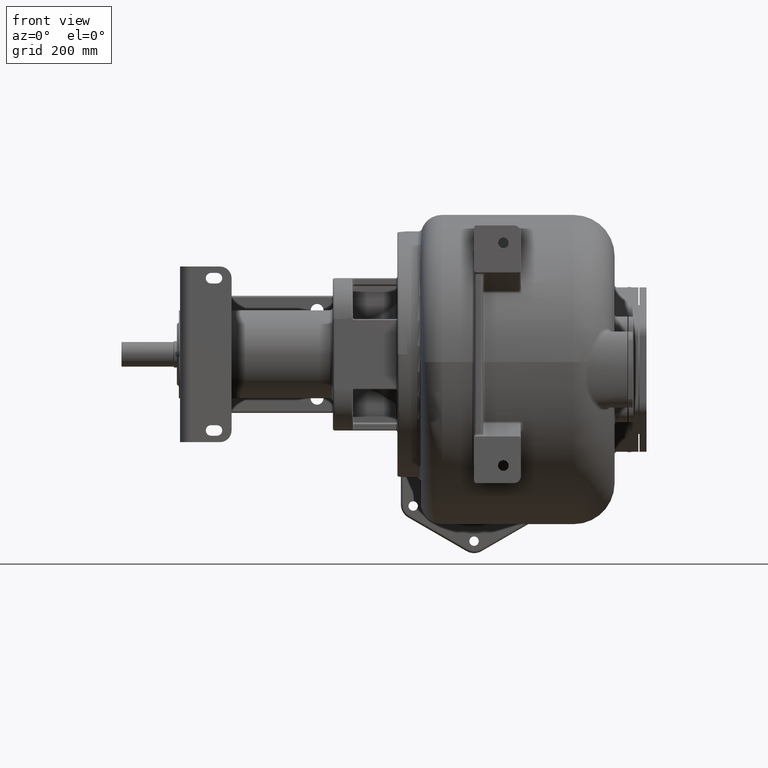
[diagram: clean part render]
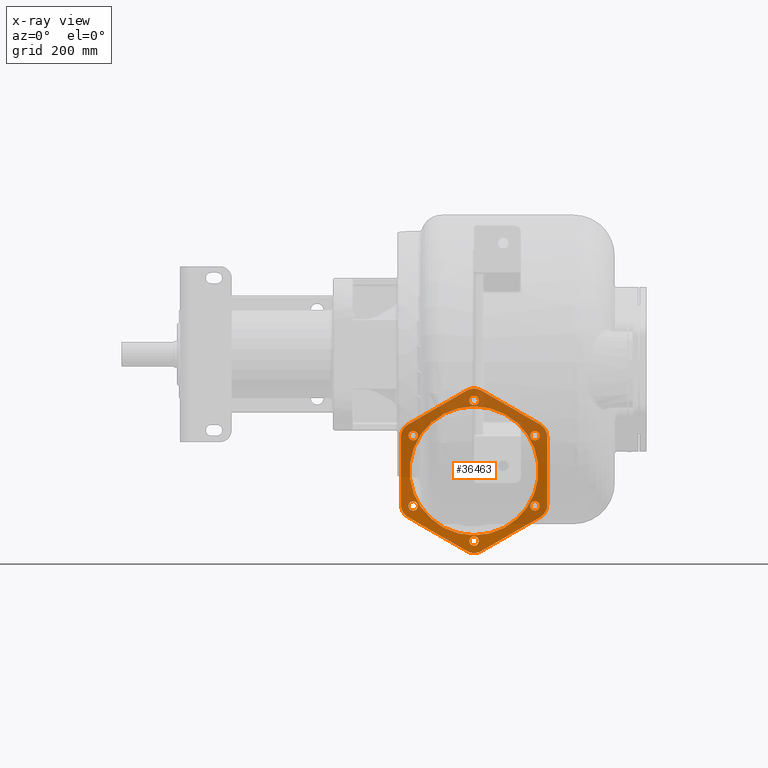
[diagram: x-ray — body ghosted, one internal face saturated and labeled with its STEP entity id]
A machine part, front view, then the same camera in x-ray: the body is ghosted and one INTERNAL B-rep face — a face not visible from any outside direction — is saturated and labeled: STEP entity #36463.
In plain terms, the highlighted planar face has unit normal (0, 1, 0).
Its self-contained STEP definition (entity closure, byte-faithful):
#11440=CARTESIAN_POINT('',(5.E1,6.36E2,-1.412649730810E2));
#11441=DIRECTION('',(0.E0,1.E0,0.E0));
#11442=DIRECTION('',(5.E-1,0.E0,8.660254037844E-1));
#11443=AXIS2_PLACEMENT_3D('',#11440,#11441,#11442);
#11445=DIRECTION('',(-8.660254037844E-1,0.E0,5.E-1));
#11446=VECTOR('',#11445,1.154700538379E2);
#11447=CARTESIAN_POINT('',(6.25E1,6.36E2,-1.196143379864E2));
#11448=LINE('',#11447,#11446);
#11449=CARTESIAN_POINT('',(-5.E1,6.36E2,-8.352994616207E1));
#11450=DIRECTION('',(0.E0,1.E0,0.E0));
#11451=DIRECTION('',(-5.E-1,0.E0,8.660254037844E-1));
#11452=AXIS2_PLACEMENT_3D('',#11449,#11450,#11451);
#11454=DIRECTION('',(-8.660254037844E-1,0.E0,-5.E-1));
#11455=VECTOR('',#11454,1.154700538379E2);
#11456=CARTESIAN_POINT('',(-6.25E1,6.36E2,-6.187931106746E1));
#11457=LINE('',#11456,#11455);
#11458=CARTESIAN_POINT('',(-1.5E2,6.36E2,-1.412649730810E2));
#11459=DIRECTION('',(0.E0,1.E0,0.E0));
#11460=DIRECTION('',(-1.E0,0.E0,0.E0));
#11461=AXIS2_PLACEMENT_3D('',#11458,#11459,#11460);
#11463=DIRECTION('',(0.E0,0.E0,-1.E0));
#11464=VECTOR('',#11463,1.154700538379E2);
#11465=CARTESIAN_POINT('',(-1.75E2,6.36E2,-1.412649730810E2));
#11466=LINE('',#11465,#11464);
#11467=CARTESIAN_POINT('',(-1.5E2,6.36E2,-2.567350269190E2));
#11468=DIRECTION('',(0.E0,1.E0,0.E0));
#11469=DIRECTION('',(-5.E-1,0.E0,-8.660254037844E-1));
#11470=AXIS2_PLACEMENT_3D('',#11467,#11468,#11469);
#11472=DIRECTION('',(8.660254037844E-1,0.E0,-5.E-1));
#11473=VECTOR('',#11472,1.154700538379E2);
#11474=CARTESIAN_POINT('',(-1.625E2,6.36E2,-2.783856620136E2));
#11475=LINE('',#11474,#11473);
#11476=CARTESIAN_POINT('',(-5.E1,6.36E2,-3.144700538379E2));
#11477=DIRECTION('',(0.E0,1.E0,0.E0));
#11478=DIRECTION('',(5.E-1,0.E0,-8.660254037844E-1));
#11479=AXIS2_PLACEMENT_3D('',#11476,#11477,#11478);
#11481=DIRECTION('',(8.660254037844E-1,0.E0,5.E-1));
#11482=VECTOR('',#11481,1.154700538379E2);
#11483=CARTESIAN_POINT('',(-3.75E1,6.36E2,-3.361206889325E2));
#11484=LINE('',#11483,#11482);
#11485=CARTESIAN_POINT('',(5.E1,6.36E2,-2.567350269190E2));
#11486=DIRECTION('',(0.E0,1.E0,0.E0));
#11487=DIRECTION('',(1.E0,0.E0,0.E0));
#11488=AXIS2_PLACEMENT_3D('',#11485,#11486,#11487);
#11490=DIRECTION('',(0.E0,0.E0,1.E0));
#11491=VECTOR('',#11490,1.154700538379E2);
#11492=CARTESIAN_POINT('',(7.5E1,6.36E2,-2.567350269190E2));
#11493=LINE('',#11492,#11491);
#11494=CARTESIAN_POINT('',(-5.E1,6.36E2,-7.9E1));
#11495=DIRECTION('',(0.E0,1.E0,0.E0));
#11496=DIRECTION('',(0.E0,0.E0,-1.E0));
#11497=AXIS2_PLACEMENT_3D('',#11494,#11495,#11496);
#11499=CARTESIAN_POINT('',(-5.E1,6.36E2,-7.9E1));
#11500=DIRECTION('',(0.E0,1.E0,0.E0));
#11501=DIRECTION('',(0.E0,0.E0,1.E0));
#11502=AXIS2_PLACEMENT_3D('',#11499,#11500,#11501);
#11504=CARTESIAN_POINT('',(-5.E1,6.36E2,-3.19E2));
#11505=DIRECTION('',(0.E0,1.E0,0.E0));
#11506=DIRECTION('',(0.E0,0.E0,-1.E0));
#11507=AXIS2_PLACEMENT_3D('',#11504,#11505,#11506);
#11509=CARTESIAN_POINT('',(-5.E1,6.36E2,-3.19E2));
#11510=DIRECTION('',(0.E0,1.E0,0.E0));
#11511=DIRECTION('',(0.E0,0.E0,1.E0));
#11512=AXIS2_PLACEMENT_3D('',#11509,#11510,#11511);
#11514=CARTESIAN_POINT('',(-1.539230484541E2,6.36E2,-1.39E2));
#11515=DIRECTION('',(0.E0,1.E0,0.E0));
#11516=DIRECTION('',(0.E0,0.E0,-1.E0));
#11517=AXIS2_PLACEMENT_3D('',#11514,#11515,#11516);
#11519=CARTESIAN_POINT('',(-1.539230484541E2,6.36E2,-1.39E2));
#11520=DIRECTION('',(0.E0,1.E0,0.E0));
#11521=DIRECTION('',(0.E0,0.E0,1.E0));
#11522=AXIS2_PLACEMENT_3D('',#11519,#11520,#11521);
#11524=CARTESIAN_POINT('',(-1.539230484541E2,6.36E2,-2.59E2));
#11525=DIRECTION('',(0.E0,1.E0,0.E0));
#11526=DIRECTION('',(0.E0,0.E0,-1.E0));
#11527=AXIS2_PLACEMENT_3D('',#11524,#11525,#11526);
#11529=CARTESIAN_POINT('',(-1.539230484541E2,6.36E2,-2.59E2));
#11530=DIRECTION('',(0.E0,1.E0,0.E0));
#11531=DIRECTION('',(0.E0,0.E0,1.E0));
#11532=AXIS2_PLACEMENT_3D('',#11529,#11530,#11531);
#11534=CARTESIAN_POINT('',(5.392304845413E1,6.36E2,-1.39E2));
#11535=DIRECTION('',(0.E0,1.E0,0.E0));
#11536=DIRECTION('',(0.E0,0.E0,-1.E0));
#11537=AXIS2_PLACEMENT_3D('',#11534,#11535,#11536);
#11539=CARTESIAN_POINT('',(5.392304845413E1,6.36E2,-1.39E2));
#11540=DIRECTION('',(0.E0,1.E0,0.E0));
#11541=DIRECTION('',(0.E0,0.E0,1.E0));
#11542=AXIS2_PLACEMENT_3D('',#11539,#11540,#11541);
#11544=CARTESIAN_POINT('',(5.392304845413E1,6.36E2,-2.59E2));
#11545=DIRECTION('',(0.E0,1.E0,0.E0));
#11546=DIRECTION('',(0.E0,0.E0,-1.E0));
#11547=AXIS2_PLACEMENT_3D('',#11544,#11545,#11546);
#11549=CARTESIAN_POINT('',(5.392304845413E1,6.36E2,-2.59E2));
#11550=DIRECTION('',(0.E0,1.E0,0.E0));
#11551=DIRECTION('',(0.E0,0.E0,1.E0));
#11552=AXIS2_PLACEMENT_3D('',#11549,#11550,#11551);
#11554=CARTESIAN_POINT('',(-5.E1,6.36E2,-1.99E2));
#11555=DIRECTION('',(0.E0,1.E0,0.E0));
#11556=DIRECTION('',(0.E0,0.E0,-1.E0));
#11557=AXIS2_PLACEMENT_3D('',#11554,#11555,#11556);
#11559=CARTESIAN_POINT('',(-5.E1,6.36E2,-1.99E2));
#11560=DIRECTION('',(0.E0,1.E0,0.E0));
#11561=DIRECTION('',(0.E0,0.E0,1.E0));
#11562=AXIS2_PLACEMENT_3D('',#11559,#11560,#11561);
#22567=CARTESIAN_POINT('',(6.25E1,6.36E2,-1.196143379864E2));
#22568=CARTESIAN_POINT('',(7.5E1,6.36E2,-1.412649730810E2));
#22569=VERTEX_POINT('',#22567);
#22570=VERTEX_POINT('',#22568);
#22571=CARTESIAN_POINT('',(7.5E1,6.36E2,-2.567350269190E2));
#22572=CARTESIAN_POINT('',(6.25E1,6.36E2,-2.783856620136E2));
#22573=VERTEX_POINT('',#22571);
#22574=VERTEX_POINT('',#22572);
#22575=CARTESIAN_POINT('',(-3.75E1,6.36E2,-3.361206889325E2));
#22576=CARTESIAN_POINT('',(-6.25E1,6.36E2,-3.361206889325E2));
#22577=VERTEX_POINT('',#22575);
#22578=VERTEX_POINT('',#22576);
#22579=CARTESIAN_POINT('',(-1.625E2,6.36E2,-2.783856620136E2));
#22580=CARTESIAN_POINT('',(-1.75E2,6.36E2,-2.567350269190E2));
#22581=VERTEX_POINT('',#22579);
#22582=VERTEX_POINT('',#22580);
#22583=CARTESIAN_POINT('',(-1.75E2,6.36E2,-1.412649730810E2));
#22584=CARTESIAN_POINT('',(-1.625E2,6.36E2,-1.196143379864E2));
#22585=VERTEX_POINT('',#22583);
#22586=VERTEX_POINT('',#22584);
#22587=CARTESIAN_POINT('',(-6.25E1,6.36E2,-6.187931106746E1));
#22588=CARTESIAN_POINT('',(-3.75E1,6.36E2,-6.187931106746E1));
#22589=VERTEX_POINT('',#22587);
#22590=VERTEX_POINT('',#22588);
#22833=CARTESIAN_POINT('',(-5.E1,6.36E2,-8.7E1));
#22834=VERTEX_POINT('',#22833);
#22835=CARTESIAN_POINT('',(-5.E1,6.36E2,-7.1E1));
#22836=VERTEX_POINT('',#22835);
#22837=CARTESIAN_POINT('',(-5.E1,6.36E2,-3.27E2));
#22839=VERTEX_POINT('',#22837);
#22841=CARTESIAN_POINT('',(-5.E1,6.36E2,-3.11E2));
#22843=VERTEX_POINT('',#22841);
#22845=CARTESIAN_POINT('',(-1.539230484541E2,6.36E2,-1.47E2));
#22847=VERTEX_POINT('',#22845);
#22849=CARTESIAN_POINT('',(-1.539230484541E2,6.36E2,-1.31E2));
#22851=VERTEX_POINT('',#22849);
#22853=CARTESIAN_POINT('',(-1.539230484541E2,6.36E2,-2.67E2));
#22855=VERTEX_POINT('',#22853);
#22857=CARTESIAN_POINT('',(-1.539230484541E2,6.36E2,-2.51E2));
#22859=VERTEX_POINT('',#22857);
#22861=CARTESIAN_POINT('',(5.392304845413E1,6.36E2,-1.47E2));
#22862=VERTEX_POINT('',#22861);
#22863=CARTESIAN_POINT('',(5.392304845413E1,6.36E2,-1.31E2));
#22864=VERTEX_POINT('',#22863);
#22865=CARTESIAN_POINT('',(5.392304845413E1,6.36E2,-2.67E2));
#22867=VERTEX_POINT('',#22865);
#22869=CARTESIAN_POINT('',(5.392304845413E1,6.36E2,-2.51E2));
#22871=VERTEX_POINT('',#22869);
#23168=CARTESIAN_POINT('',(-5.E1,6.36E2,-3.09E2));
#23169=CARTESIAN_POINT('',(-5.E1,6.36E2,-8.9E1));
#23170=VERTEX_POINT('',#23168);
#23171=VERTEX_POINT('',#23169);
#36392=CARTESIAN_POINT('',(-1.64E2,6.36E2,0.E0));
#36393=DIRECTION('',(0.E0,1.E0,0.E0));
#36394=DIRECTION('',(0.E0,0.E0,-1.E0));
#36395=AXIS2_PLACEMENT_3D('',#36392,#36393,#36394);
#36396=PLANE('',#36395);
#36398=ORIENTED_EDGE('',*,*,#36397,.F.);
#36400=ORIENTED_EDGE('',*,*,#36399,.T.);
#36401=ORIENTED_EDGE('',*,*,#36385,.F.);
#36402=ORIENTED_EDGE('',*,*,#31281,.T.);
#36404=ORIENTED_EDGE('',*,*,#36403,.F.);
#36406=ORIENTED_EDGE('',*,*,#36405,.T.);
#36408=ORIENTED_EDGE('',*,*,#36407,.F.);
#36410=ORIENTED_EDGE('',*,*,#36409,.T.);
#36412=ORIENTED_EDGE('',*,*,#36411,.F.);
#36414=ORIENTED_EDGE('',*,*,#36413,.T.);
#36416=ORIENTED_EDGE('',*,*,#36415,.F.);
#36418=ORIENTED_EDGE('',*,*,#36417,.T.);
#36419=EDGE_LOOP('',(#36398,#36400,#36401,#36402,#36404,#36406,#36408,#36410,
#36412,#36414,#36416,#36418));
#36420=FACE_OUTER_BOUND('',#36419,.F.);
#36422=ORIENTED_EDGE('',*,*,#36421,.T.);
#36424=ORIENTED_EDGE('',*,*,#36423,.T.);
#36425=EDGE_LOOP('',(#36422,#36424));
#36426=FACE_BOUND('',#36425,.F.);
#36428=ORIENTED_EDGE('',*,*,#36427,.T.);
#36430=ORIENTED_EDGE('',*,*,#36429,.T.);
#36431=EDGE_LOOP('',(#36428,#36430));
#36432=FACE_BOUND('',#36431,.F.);
#36434=ORIENTED_EDGE('',*,*,#36433,.T.);
#36436=ORIENTED_EDGE('',*,*,#36435,.T.);
#36437=EDGE_LOOP('',(#36434,#36436));
#36438=FACE_BOUND('',#36437,.F.);
#36440=ORIENTED_EDGE('',*,*,#36439,.T.);
#36442=ORIENTED_EDGE('',*,*,#36441,.T.);
#36443=EDGE_LOOP('',(#36440,#36442));
#36444=FACE_BOUND('',#36443,.F.);
#36446=ORIENTED_EDGE('',*,*,#36445,.T.);
#36448=ORIENTED_EDGE('',*,*,#36447,.T.);
#36449=EDGE_LOOP('',(#36446,#36448));
#36450=FACE_BOUND('',#36449,.F.);
#36452=ORIENTED_EDGE('',*,*,#36451,.T.);
#36454=ORIENTED_EDGE('',*,*,#36453,.T.);
#36455=EDGE_LOOP('',(#36452,#36454));
#36456=FACE_BOUND('',#36455,.F.);
#36458=ORIENTED_EDGE('',*,*,#36457,.T.);
#36460=ORIENTED_EDGE('',*,*,#36459,.T.);
#36461=EDGE_LOOP('',(#36458,#36460));
#36462=FACE_BOUND('',#36461,.F.);
#36463=ADVANCED_FACE('',(#36420,#36426,#36432,#36438,#36444,#36450,#36456,
#36462),#36396,.T.);
#11444=CIRCLE('',#11443,2.5E1);
#11453=CIRCLE('',#11452,2.5E1);
#11462=CIRCLE('',#11461,2.5E1);
#11471=CIRCLE('',#11470,2.5E1);
#11480=CIRCLE('',#11479,2.5E1);
#11489=CIRCLE('',#11488,2.5E1);
#11498=CIRCLE('',#11497,8.E0);
#11503=CIRCLE('',#11502,8.E0);
#11508=CIRCLE('',#11507,8.E0);
#11513=CIRCLE('',#11512,8.E0);
#11518=CIRCLE('',#11517,8.E0);
#11523=CIRCLE('',#11522,8.E0);
#11528=CIRCLE('',#11527,8.E0);
#11533=CIRCLE('',#11532,8.E0);
#11538=CIRCLE('',#11537,8.E0);
#11543=CIRCLE('',#11542,8.E0);
#11548=CIRCLE('',#11547,8.E0);
#11553=CIRCLE('',#11552,8.E0);
#11558=CIRCLE('',#11557,1.1E2);
#11563=CIRCLE('',#11562,1.1E2);
#31281=EDGE_CURVE('',#22589,#22586,#11457,.T.);
#36385=EDGE_CURVE('',#22589,#22590,#11453,.T.);
#36397=EDGE_CURVE('',#22569,#22570,#11444,.T.);
#36399=EDGE_CURVE('',#22569,#22590,#11448,.T.);
#36403=EDGE_CURVE('',#22585,#22586,#11462,.T.);
#36405=EDGE_CURVE('',#22585,#22582,#11466,.T.);
#36407=EDGE_CURVE('',#22581,#22582,#11471,.T.);
#36409=EDGE_CURVE('',#22581,#22578,#11475,.T.);
#36411=EDGE_CURVE('',#22577,#22578,#11480,.T.);
#36413=EDGE_CURVE('',#22577,#22574,#11484,.T.);
#36415=EDGE_CURVE('',#22573,#22574,#11489,.T.);
#36417=EDGE_CURVE('',#22573,#22570,#11493,.T.);
#36421=EDGE_CURVE('',#22834,#22836,#11498,.T.);
#36423=EDGE_CURVE('',#22836,#22834,#11503,.T.);
#36427=EDGE_CURVE('',#22839,#22843,#11508,.T.);
#36429=EDGE_CURVE('',#22843,#22839,#11513,.T.);
#36433=EDGE_CURVE('',#22847,#22851,#11518,.T.);
#36435=EDGE_CURVE('',#22851,#22847,#11523,.T.);
#36439=EDGE_CURVE('',#22855,#22859,#11528,.T.);
#36441=EDGE_CURVE('',#22859,#22855,#11533,.T.);
#36445=EDGE_CURVE('',#22862,#22864,#11538,.T.);
#36447=EDGE_CURVE('',#22864,#22862,#11543,.T.);
#36451=EDGE_CURVE('',#22867,#22871,#11548,.T.);
#36453=EDGE_CURVE('',#22871,#22867,#11553,.T.);
#36457=EDGE_CURVE('',#23170,#23171,#11558,.T.);
#36459=EDGE_CURVE('',#23171,#23170,#11563,.T.);